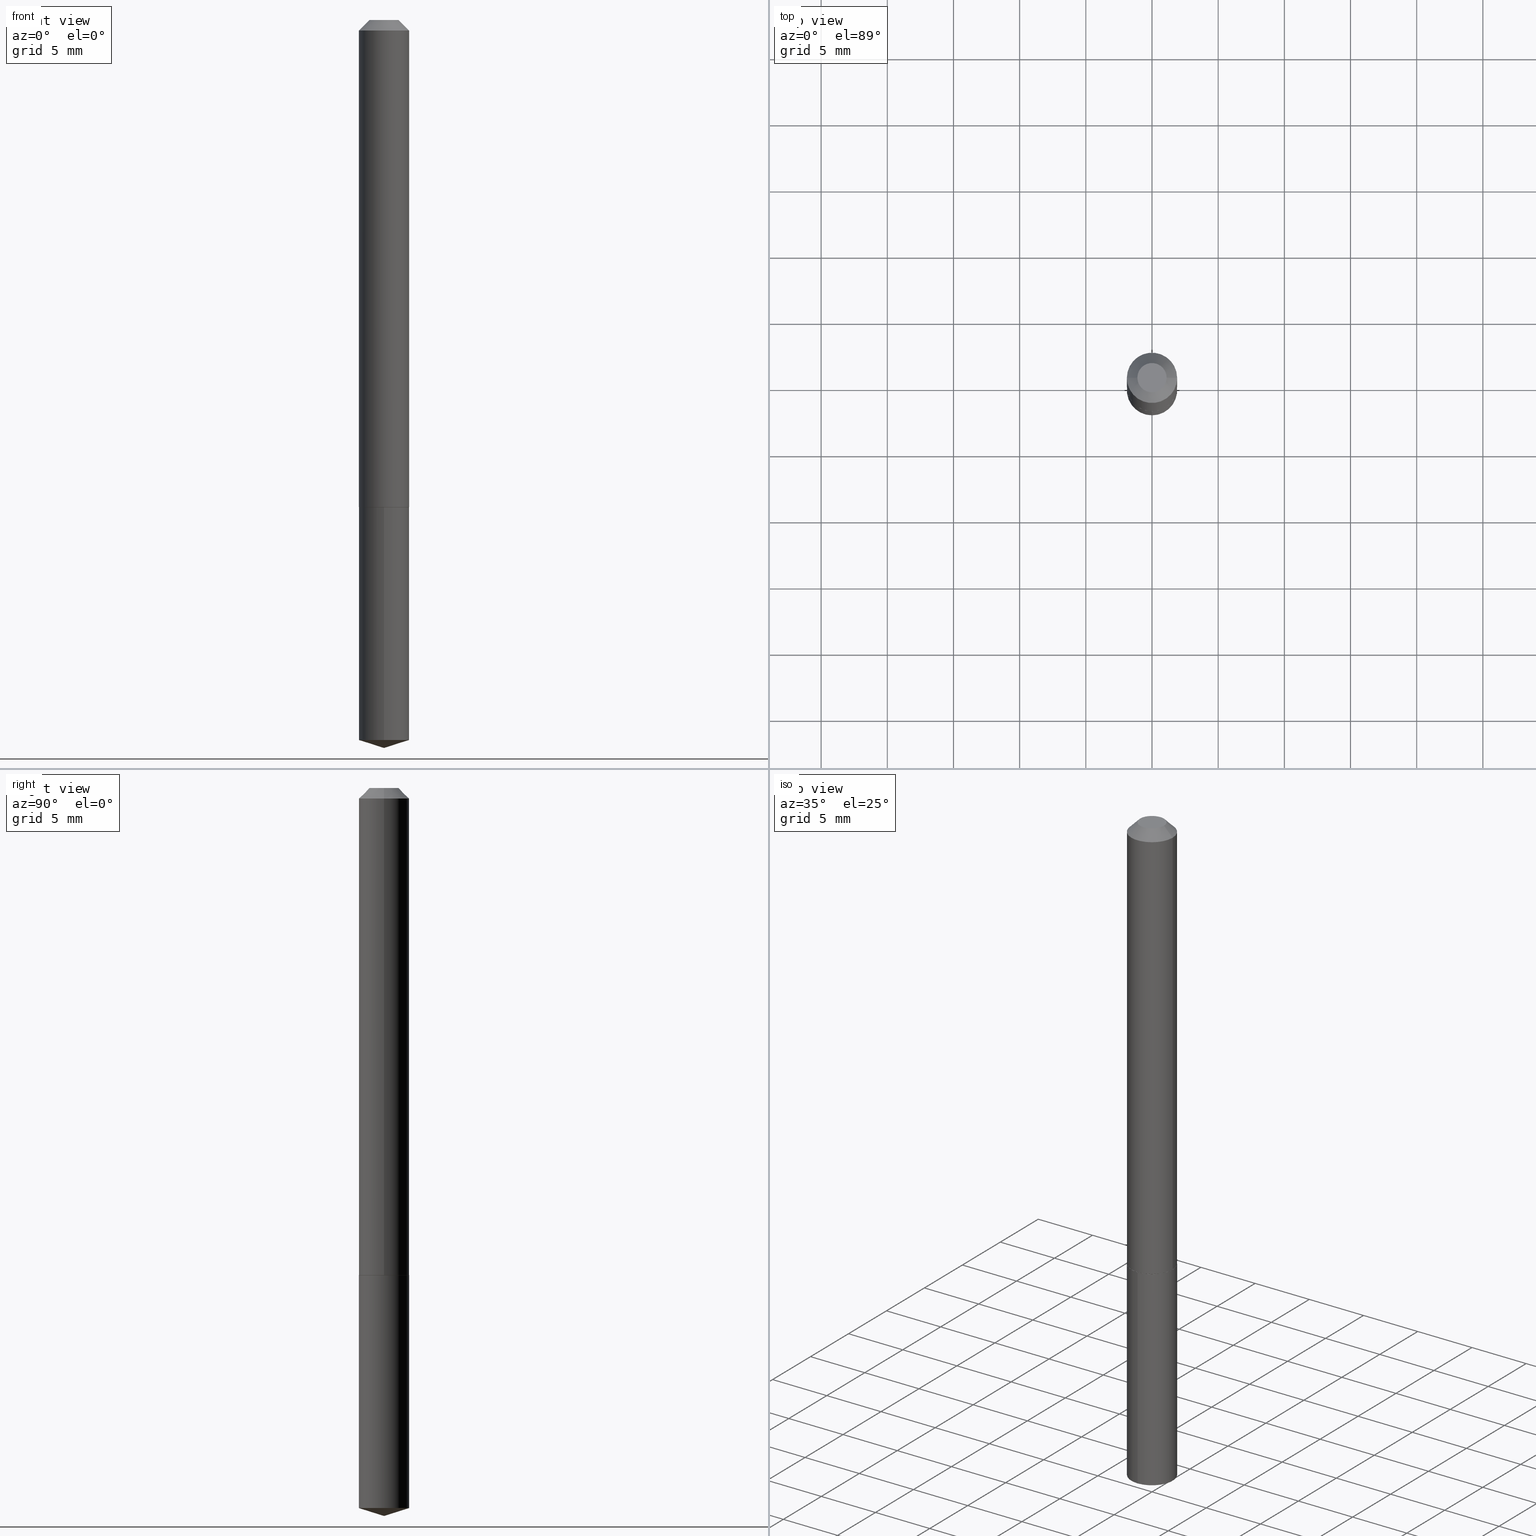
[diagram: canonical four-view strip — front | top / right | iso, engineering-drawing reading convention]
A machine part, canonical four-view strip (front | top / right | iso — engineering-drawing reading convention). The complete STEP part file that produces these views, byte-faithful:
ISO-10303-21;
HEADER;
FILE_DESCRIPTION (( 'STEP AP203' ),
    '1' );
FILE_NAME ('62087.STEP',
    '2024-04-23T05:45:46',
    ( '' ),
    ( '' ),
    'SwSTEP 2.0',
    'SolidWorks 2023',
    '' );
FILE_SCHEMA (( 'CONFIG_CONTROL_DESIGN' ));
ENDSEC;

DATA;
#1 = DIRECTION ( 'NONE',  ( 6.776566513254254982E-15, 0.9537169507482283759, 0.3007057995042684562 ) ) ;
#2 = DIRECTION ( 'NONE',  ( -2.445468806185136597E-29, 3.491481338843145583E-15, 1.000000000000000000 ) ) ;
#3 = VECTOR ( 'NONE', #81, 39.37007874015748143 ) ;
#4 = ORIENTED_EDGE ( 'NONE', *, *, #357, .T. ) ;
#5 = DATE_AND_TIME ( #182, #242 ) ;
#6 = ORIENTED_EDGE ( 'NONE', *, *, #159, .T. ) ;
#7 = EDGE_CURVE ( 'NONE', #8, #44, #180, .T. ) ;
#8 = VERTEX_POINT ( 'NONE', #46 ) ;
#9 = EDGE_LOOP ( 'NONE', ( #188, #73, #6, #324 ) ) ;
#10 = CLOSED_SHELL ( 'NONE', ( #267, #52, #375, #239, #28 ) ) ;
#11 = LOCAL_TIME ( 1, 45, 46.00000000000000000, #130 ) ;
#12 = DIRECTION ( 'NONE',  ( -2.445509094605350036E-29, 3.491423643532325446E-15, 1.000000000000000000 ) ) ;
#13 = DATE_AND_TIME ( #35, #176 ) ;
#14 = DIRECTION ( 'NONE',  ( -2.445509094605350036E-29, 3.491423643532325446E-15, 1.000000000000000000 ) ) ;
#15 = CYLINDRICAL_SURFACE ( 'NONE', #373, 0.07480000000000010252 ) ;
#16 = EDGE_CURVE ( 'NONE', #87, #355, #161, .T. ) ;
#17 = VECTOR ( 'NONE', #243, 39.37007874015748143 ) ;
#18 = DIRECTION ( 'NONE',  ( -6.659769872151628144E-15, -0.9537169507482261555, 0.3007057995042750620 ) ) ;
#19 = CARTESIAN_POINT ( 'NONE',  ( 0.07480000000000000537, -6.222740420721597243E-16, -0.03125000000000020123 ) ) ;
#20 = PERSON ( 'UNSPECIFIED', 'UNSPECIFIED', 'UNSPECIFIED', ('UNSPECIFIED'), ('UNSPECIFIED'), ('UNSPECIFIED') ) ;
#21 = DIRECTION ( 'NONE',  ( 1.000000000000000000, -6.982962677686271444E-15, 0.000000000000000000 ) ) ;
#22 = CONICAL_SURFACE ( 'NONE', #258, 124.8659371009144792, 1.265363707695890350 ) ;
#23 = CC_DESIGN_DATE_AND_TIME_ASSIGNMENT ( #13, #123, ( #91 ) ) ;
#24 = LINE ( 'NONE', #53, #3 ) ;
#25 = CARTESIAN_POINT ( 'NONE',  ( 3.543239753281644463E-29, -5.058807311849834990E-15, -1.448900000000000299 ) ) ;
#26 = DIRECTION ( 'NONE',  ( -2.445509094605349756E-29, 3.491423643532325446E-15, 1.000000000000000000 ) ) ;
#27 = VERTEX_POINT ( 'NONE', #338 ) ;
#28 = ADVANCED_FACE ( 'NONE', ( #290 ), #157, .F. ) ;
#29 = AXIS2_PLACEMENT_3D ( 'NONE', #40, #12, #192 ) ;
#30 = FACE_OUTER_BOUND ( 'NONE', #272, .T. ) ;
#31 = ORIENTED_EDGE ( 'NONE', *, *, #56, .T. ) ;
#32 = CARTESIAN_POINT ( 'NONE',  ( 5.295506417198682651E-29, -7.560328757704898095E-15, -2.165399999999999991 ) ) ;
#33 = ORIENTED_EDGE ( 'NONE', *, *, #357, .F. ) ;
#34 = CARTESIAN_POINT ( 'NONE',  ( 3.543239753281644463E-29, -5.058807311849834990E-15, -1.448900000000000299 ) ) ;
#35 = CALENDAR_DATE ( 2024, 23, 4 ) ;
#36 = EDGE_CURVE ( 'NONE', #174, #208, #230, .T. ) ;
#37 = AXIS2_PLACEMENT_3D ( 'NONE', #247, #14, #72 ) ;
#38 = ORIENTED_EDGE ( 'NONE', *, *, #75, .T. ) ;
#39 = APPROVAL_ROLE ( '' ) ;
#40 = CARTESIAN_POINT ( 'NONE',  ( -9.098443859481748747E-28, 1.298972114086744385E-13, 37.20467874015748322 ) ) ;
#41 = MANIFOLD_SOLID_BREP ( 'Body-Move/Copy2[1]', #10 ) ;
#42 = DIRECTION ( 'NONE',  ( -0.7071067811865453523, 2.468850131082234184E-15, -0.7071067811865496822 ) ) ;
#43 = APPROVAL ( #256, 'UNSPECIFIED' ) ;
#44 = VERTEX_POINT ( 'NONE', #93 ) ;
#45 = APPROVAL_DATE_TIME ( #66, #43 ) ;
#46 = CARTESIAN_POINT ( 'NONE',  ( 0.07430000000000049065, -5.577641438801927150E-15, -1.448900000000000299 ) ) ;
#47 = ORIENTED_EDGE ( 'NONE', *, *, #7, .F. ) ;
#48 = CARTESIAN_POINT ( 'NONE',  ( -5.223256082908973017E-16, -0.07480000000000507077, -1.448899999999999855 ) ) ;
#49 = CONICAL_SURFACE ( 'NONE', #250, 0.07480000000000000537, 0.7853981633974452814 ) ;
#50 = CARTESIAN_POINT ( 'NONE',  ( 5.314859663486073379E-16, 0.07479999999999492610, -1.448900000000000521 ) ) ;
#51 = LINE ( 'NONE', #295, #277 ) ;
#52 = ADVANCED_FACE ( 'NONE', ( #129 ), #141, .T. ) ;
#53 = CARTESIAN_POINT ( 'NONE',  ( 0.07480000000000018578, -5.579387179471347865E-15, -1.448400000000000354 ) ) ;
#54 = FACE_OUTER_BOUND ( 'NONE', #74, .T. ) ;
#55 = FACE_OUTER_BOUND ( 'NONE', #9, .T. ) ;
#56 = EDGE_CURVE ( 'NONE', #149, #87, #264, .T. ) ;
#57 = DIRECTION ( 'NONE',  ( 1.000000000000000000, -6.982962677686271444E-15, 0.000000000000000000 ) ) ;
#58 = VECTOR ( 'NONE', #261, 39.37007874015748143 ) ;
#59 = CC_DESIGN_SECURITY_CLASSIFICATION ( #347, ( #79 ) ) ;
#60 =( NAMED_UNIT ( * ) SI_UNIT ( $, .STERADIAN. ) SOLID_ANGLE_UNIT ( ) );
#61 = ORIENTED_EDGE ( 'NONE', *, *, #226, .T. ) ;
#62 = ADVANCED_FACE ( 'NONE', ( #100 ), #49, .T. ) ;
#63 = DIRECTION ( 'NONE',  ( 1.000000000000000000, -6.982962677686265922E-15, 4.876176775795935793E-29 ) ) ;
#64 = ORIENTED_EDGE ( 'NONE', *, *, #125, .F. ) ;
#65 = UNCERTAINTY_MEASURE_WITH_UNIT (LENGTH_MEASURE( 1.000000000000000082E-05 ), #389, 'distance_accuracy_value', 'NONE');
#66 = DATE_AND_TIME ( #248, #136 ) ;
#67 = AXIS2_PLACEMENT_3D ( 'NONE', #168, #171, #198 ) ;
#68 = CC_DESIGN_APPROVAL ( #43, ( #91 ) ) ;
#69 = ORIENTED_EDGE ( 'NONE', *, *, #206, .T. ) ;
#70 = ORIENTED_EDGE ( 'NONE', *, *, #125, .T. ) ;
#71 = EDGE_CURVE ( 'NONE', #208, #174, #135, .T. ) ;
#72 = DIRECTION ( 'NONE',  ( -6.982962677686266711E-15, -1.000000000000000000, 3.652203200085913145E-15 ) ) ;
#73 = ORIENTED_EDGE ( 'NONE', *, *, #291, .T. ) ;
#74 = EDGE_LOOP ( 'NONE', ( #304, #220, #211, #179 ) ) ;
#75 = EDGE_CURVE ( 'NONE', #187, #289, #345, .T. ) ;
#76 = FACE_OUTER_BOUND ( 'NONE', #390, .T. ) ;
#77 = DIRECTION ( 'NONE',  ( -2.445509094605350036E-29, 3.491423643532325446E-15, 1.000000000000000000 ) ) ;
#78 = AXIS2_PLACEMENT_3D ( 'NONE', #139, #77, #142 ) ;
#79 = PRODUCT_DEFINITION_FORMATION_WITH_SPECIFIED_SOURCE ( 'ANY', '', #189, .NOT_KNOWN. ) ;
#80 = CARTESIAN_POINT ( 'NONE',  ( 0.07480000000000018578, -5.579387179471347865E-15, -1.448400000000000354 ) ) ;
#81 = DIRECTION ( 'NONE',  ( 0.7071067811864026886, -2.468850131080739687E-15, 0.7071067811866923458 ) ) ;
#82 = PLANE ( 'NONE',  #67 ) ;
#83 = AXIS2_PLACEMENT_3D ( 'NONE', #271, #210, #323 ) ;
#84 = ADVANCED_FACE ( 'NONE', ( #349 ), #293, .T. ) ;
#85 = ORIENTED_EDGE ( 'NONE', *, *, #16, .T. ) ;
#86 = CARTESIAN_POINT ( 'NONE',  ( 7.642090019328601786E-31, -1.091087918388490144E-16, -0.03125000000000020123 ) ) ;
#87 = VERTEX_POINT ( 'NONE', #105 ) ;
#88 = DIRECTION ( 'NONE',  ( -6.982962677686268288E-15, -1.000000000000000000, 3.500519750498720998E-15 ) ) ;
#89 = AXIS2_PLACEMENT_3D ( 'NONE', #133, #255, #370 ) ;
#90 = CYLINDRICAL_SURFACE ( 'NONE', #257, 0.07480000000000000537 ) ;
#91 = PRODUCT_DEFINITION ( 'UNKNOWN', '', #79, #262 ) ;
#92 = CARTESIAN_POINT ( 'NONE',  ( 5.314859663485903773E-16, 0.07479999999999495386, -1.448900000000000521 ) ) ;
#93 = CARTESIAN_POINT ( 'NONE',  ( -0.07430000000000049065, -4.528224832005967541E-15, -1.448900000000000299 ) ) ;
#94 = EDGE_CURVE ( 'NONE', #174, #27, #111, .T. ) ;
#95 = COORDINATED_UNIVERSAL_TIME_OFFSET ( 5, 0, .BEHIND. ) ;
#96 = EDGE_LOOP ( 'NONE', ( #4, #31 ) ) ;
#97 = PERSON_AND_ORGANIZATION ( #20, #321 ) ;
#98 = ORIENTED_EDGE ( 'NONE', *, *, #159, .F. ) ;
#99 = PERSON_AND_ORGANIZATION ( #20, #321 ) ;
#100 = FACE_OUTER_BOUND ( 'NONE', #387, .T. ) ;
#101 = CARTESIAN_POINT ( 'NONE',  ( 0.000000000000000000, 0.000000000000000000, 0.000000000000000000 ) ) ;
#102 = ORIENTED_EDGE ( 'NONE', *, *, #291, .F. ) ;
#103 = CIRCLE ( 'NONE', #299, 0.07480000000000000537 ) ;
#104 = APPROVAL_PERSON_ORGANIZATION ( #363, #43, #214 ) ;
#105 = CARTESIAN_POINT ( 'NONE',  ( -0.04355000000000000537, 3.586624205326603821E-16, 2.388061258314175796E-19 ) ) ;
#106 = DIRECTION ( 'NONE',  ( 2.445468806185136597E-29, -3.491481338843145583E-15, -1.000000000000000000 ) ) ;
#107 = EDGE_CURVE ( 'NONE', #27, #122, #190, .T. ) ;
#108 = DIRECTION ( 'NONE',  ( -6.982962677686266711E-15, -1.000000000000000000, 3.652203200085913145E-15 ) ) ;
#109 = CIRCLE ( 'NONE', #269, 0.07430000000000049065 ) ;
#110 = CARTESIAN_POINT ( 'NONE',  ( 3.542017018878552782E-29, -5.057061571180413486E-15, -1.448400000000000354 ) ) ;
#111 = LINE ( 'NONE', #48, #58 ) ;
#112 = LINE ( 'NONE', #92, #346 ) ;
#113 = CIRCLE ( 'NONE', #308, 0.07480000000000018578 ) ;
#114 = LINE ( 'NONE', #32, #315 ) ;
#115 = ORIENTED_EDGE ( 'NONE', *, *, #301, .T. ) ;
#116 =( NAMED_UNIT ( * ) PLANE_ANGLE_UNIT ( ) SI_UNIT ( $, .RADIAN. ) );
#117 = CARTESIAN_POINT ( 'NONE',  ( -0.07480000000000000537, -2.051599215161074541E-15, -0.03125000000000020123 ) ) ;
#118 = EDGE_CURVE ( 'NONE', #332, #187, #113, .T. ) ;
#119 = ORIENTED_EDGE ( 'NONE', *, *, #107, .T. ) ;
#120 = VECTOR ( 'NONE', #42, 39.37007874015748143 ) ;
#121 = DIRECTION ( 'NONE',  ( 1.000000000000000000, -6.982962677686265922E-15, 4.876178871365119534E-29 ) ) ;
#122 = VERTEX_POINT ( 'NONE', #50 ) ;
#123 = DATE_TIME_ROLE ( 'creation_date' ) ;
#124 = DIRECTION ( 'NONE',  ( 2.445509094605349756E-29, -3.491423643532325446E-15, -1.000000000000000000 ) ) ;
#125 = EDGE_CURVE ( 'NONE', #149, #289, #166, .T. ) ;
#126 = CARTESIAN_POINT ( 'NONE',  ( 3.543239753281644463E-29, -5.058807311849834990E-15, -1.448900000000000299 ) ) ;
#127 = AXIS2_PLACEMENT_3D ( 'NONE', #300, #148, #297 ) ;
#128 = PERSON_AND_ORGANIZATION ( #20, #321 ) ;
#129 = FACE_OUTER_BOUND ( 'NONE', #158, .T. ) ;
#130 = COORDINATED_UNIVERSAL_TIME_OFFSET ( 5, 0, .BEHIND. ) ;
#131 = VERTEX_POINT ( 'NONE', #377 ) ;
#132 = APPROVAL_ROLE ( '' ) ;
#133 = CARTESIAN_POINT ( 'NONE',  ( -5.839929314523209442E-48, 8.337871319499132076E-34, 2.388061258337348103E-19 ) ) ;
#134 = CARTESIAN_POINT ( 'NONE',  ( 3.543239753281644463E-29, -5.058807311849834990E-15, -1.448900000000000299 ) ) ;
#135 = CIRCLE ( 'NONE', #333, 0.07480000000000000537 ) ;
#136 = LOCAL_TIME ( 1, 45, 46.00000000000000000, #331 ) ;
#137 = DIRECTION ( 'NONE',  ( 1.000000000000000000, -6.982962677686266711E-15, 0.000000000000000000 ) ) ;
#138 = APPROVAL ( #334, 'UNSPECIFIED' ) ;
#139 = CARTESIAN_POINT ( 'NONE',  ( 3.543239753281644463E-29, -5.058807311849834990E-15, -1.448900000000000299 ) ) ;
#140 = DIRECTION ( 'NONE',  ( 2.445468806185136597E-29, -3.491481338843145583E-15, -1.000000000000000000 ) ) ;
#141 = CONICAL_SURFACE ( 'NONE', #29, 124.8659371009144792, 1.265363707695890350 ) ;
#142 = DIRECTION ( 'NONE',  ( -6.982962677686265922E-15, -1.000000000000000000, 3.652203200085913145E-15 ) ) ;
#143 =( LENGTH_UNIT ( ) NAMED_UNIT ( * ) SI_UNIT ( $, .METRE. ) );
#144 = CARTESIAN_POINT ( 'NONE',  ( -0.07480000000000018578, -4.525575604831857918E-15, -1.448400000000000354 ) ) ;
#145 = CIRCLE ( 'NONE', #366, 0.07480000000000000537 ) ;
#146 =( GEOMETRIC_REPRESENTATION_CONTEXT ( 3 ) GLOBAL_UNCERTAINTY_ASSIGNED_CONTEXT ( ( #65 ) ) GLOBAL_UNIT_ASSIGNED_CONTEXT ( ( #389, #116, #60 ) ) REPRESENTATION_CONTEXT ( 'NONE', 'WORKASPACE' ) );
#147 = ORIENTED_EDGE ( 'NONE', *, *, #16, .F. ) ;
#148 = DIRECTION ( 'NONE',  ( -2.445468806185136597E-29, 3.491481338843145583E-15, 1.000000000000000000 ) ) ;
#149 = VERTEX_POINT ( 'NONE', #380 ) ;
#150 = DIRECTION ( 'NONE',  ( -2.445468806185136597E-29, 3.491481338843145583E-15, 1.000000000000000000 ) ) ;
#151 = CIRCLE ( 'NONE', #127, 0.07480000000000018578 ) ;
#152 = SECURITY_CLASSIFICATION_LEVEL ( 'unclassified' ) ;
#153 = ORIENTED_EDGE ( 'NONE', *, *, #107, .F. ) ;
#154 = PERSON_AND_ORGANIZATION_ROLE ( 'design_supplier' ) ;
#155 = ORIENTED_EDGE ( 'NONE', *, *, #175, .T. ) ;
#156 = PERSON_AND_ORGANIZATION_ROLE ( 'creator' ) ;
#157 = PLANE ( 'NONE',  #365 ) ;
#158 = EDGE_LOOP ( 'NONE', ( #354, #115, #335 ) ) ;
#159 = EDGE_CURVE ( 'NONE', #8, #187, #24, .T. ) ;
#160 = APPROVAL_STATUS ( 'not_yet_approved' ) ;
#161 = LINE ( 'NONE', #218, #120 ) ;
#162 = ORIENTED_EDGE ( 'NONE', *, *, #71, .F. ) ;
#163 = ADVANCED_BREP_SHAPE_REPRESENTATION ( '62087', ( #41, #311, #169 ), #146 ) ;
#164 = FACE_OUTER_BOUND ( 'NONE', #96, .T. ) ;
#165 = AXIS2_PLACEMENT_3D ( 'NONE', #319, #374, #294 ) ;
#166 = LINE ( 'NONE', #19, #238 ) ;
#167 = DIRECTION ( 'NONE',  ( -2.445509094605350036E-29, 3.491423643532325446E-15, 1.000000000000000000 ) ) ;
#168 = CARTESIAN_POINT ( 'NONE',  ( -2.919964657261604721E-48, 4.168935659749566038E-34, 1.194030629168674052E-19 ) ) ;
#169 = AXIS2_PLACEMENT_3D ( 'NONE', #101, #369, #222 ) ;
#170 = ADVANCED_FACE ( 'NONE', ( #381 ), #352, .T. ) ;
#171 = DIRECTION ( 'NONE',  ( 2.438088387897960049E-29, -3.491481338843145188E-15, -1.000000000000000000 ) ) ;
#172 = DIRECTION ( 'NONE',  ( -2.445468806185136597E-29, 3.491481338843145583E-15, 1.000000000000000000 ) ) ;
#173 = CARTESIAN_POINT ( 'NONE',  ( -9.098443859481748747E-28, 1.298972114086744385E-13, 37.20467874015748322 ) ) ;
#174 = VERTEX_POINT ( 'NONE', #343 ) ;
#175 = EDGE_CURVE ( 'NONE', #289, #355, #103, .T. ) ;
#176 = LOCAL_TIME ( 1, 45, 46.00000000000000000, #178 ) ;
#177 = CARTESIAN_POINT ( 'NONE',  ( 3.543239753281644463E-29, -5.058807311849834990E-15, -1.448900000000000299 ) ) ;
#178 = COORDINATED_UNIVERSAL_TIME_OFFSET ( 5, 0, .BEHIND. ) ;
#179 = ORIENTED_EDGE ( 'NONE', *, *, #206, .F. ) ;
#180 = CIRCLE ( 'NONE', #378, 0.07430000000000049065 ) ;
#181 = AXIS2_PLACEMENT_3D ( 'NONE', #353, #172, #57 ) ;
#182 = CALENDAR_DATE ( 2024, 23, 4 ) ;
#183 = ADVANCED_FACE ( 'NONE', ( #76 ), #285, .T. ) ;
#184 = EDGE_LOOP ( 'NONE', ( #249, #225, #153, #307 ) ) ;
#185 = APPLICATION_CONTEXT ( 'configuration controlled 3d designs of mechanical parts and assemblies' ) ;
#186 = PERSON_AND_ORGANIZATION ( #20, #321 ) ;
#187 = VERTEX_POINT ( 'NONE', #80 ) ;
#188 = ORIENTED_EDGE ( 'NONE', *, *, #382, .F. ) ;
#189 = PRODUCT ( '62087', '62087', '', ( #278 ) ) ;
#190 = CIRCLE ( 'NONE', #78, 0.07480000000000000537 ) ;
#191 = CONICAL_SURFACE ( 'NONE', #181, 0.07480000000000018578, 0.7853981633972434429 ) ;
#192 = DIRECTION ( 'NONE',  ( -6.982962677686268288E-15, -1.000000000000000000, 3.500519750498720998E-15 ) ) ;
#193 = DIRECTION ( 'NONE',  ( -2.445468806185136597E-29, 3.491481338843145583E-15, 1.000000000000000000 ) ) ;
#194 = ADVANCED_FACE ( 'NONE', ( #164 ), #82, .F. ) ;
#195 = DIRECTION ( 'NONE',  ( -2.445468806185136877E-29, 3.491481338843145188E-15, 1.000000000000000000 ) ) ;
#196 = CARTESIAN_POINT ( 'NONE',  ( 3.542017018878552782E-29, -5.057061571180413486E-15, -1.448400000000000354 ) ) ;
#197 = VECTOR ( 'NONE', #296, 39.37007874015748143 ) ;
#198 = DIRECTION ( 'NONE',  ( -1.000000000000000000, 6.982962677686265922E-15, -4.876176775795935793E-29 ) ) ;
#199 = CARTESIAN_POINT ( 'NONE',  ( 0.07480000000000010252, -5.223256082909333921E-16, 3.647380228295364368E-30 ) ) ;
#200 = CC_DESIGN_DATE_AND_TIME_ASSIGNMENT ( #367, #254, ( #347 ) ) ;
#201 = FACE_OUTER_BOUND ( 'NONE', #244, .T. ) ;
#202 = AXIS2_PLACEMENT_3D ( 'NONE', #110, #234, #314 ) ;
#203 = CYLINDRICAL_SURFACE ( 'NONE', #83, 0.07480000000000000537 ) ;
#204 = ORIENTED_EDGE ( 'NONE', *, *, #7, .T. ) ;
#205 = DIRECTION ( 'NONE',  ( -2.445509094605350036E-29, 3.491423643532325446E-15, 1.000000000000000000 ) ) ;
#206 = EDGE_CURVE ( 'NONE', #122, #27, #216, .T. ) ;
#207 = ORIENTED_EDGE ( 'NONE', *, *, #312, .F. ) ;
#208 = VERTEX_POINT ( 'NONE', #318 ) ;
#209 = AXIS2_PLACEMENT_3D ( 'NONE', #134, #236, #350 ) ;
#210 = DIRECTION ( 'NONE',  ( -2.445509094605350036E-29, 3.491423643532325446E-15, 1.000000000000000000 ) ) ;
#211 = ORIENTED_EDGE ( 'NONE', *, *, #94, .T. ) ;
#212 = LINE ( 'NONE', #326, #197 ) ;
#213 = CC_DESIGN_PERSON_AND_ORGANIZATION_ASSIGNMENT ( #99, #283, ( #189 ) ) ;
#214 = APPROVAL_ROLE ( '' ) ;
#215 = ORIENTED_EDGE ( 'NONE', *, *, #56, .F. ) ;
#216 = CIRCLE ( 'NONE', #209, 0.07480000000000000537 ) ;
#217 = CALENDAR_DATE ( 2024, 23, 4 ) ;
#218 = CARTESIAN_POINT ( 'NONE',  ( -0.07480000000000000537, 4.132168164520837984E-16, -0.03125000000000020123 ) ) ;
#219 = DATE_AND_TIME ( #371, #11 ) ;
#220 = ORIENTED_EDGE ( 'NONE', *, *, #71, .T. ) ;
#221 = PRODUCT_RELATED_PRODUCT_CATEGORY ( 'detail', '', ( #189 ) ) ;
#222 = DIRECTION ( 'NONE',  ( 1.000000000000000000, 0.000000000000000000, 0.000000000000000000 ) ) ;
#223 = CARTESIAN_POINT ( 'NONE',  ( 7.642090019328601786E-31, -1.091087918388490144E-16, -0.03125000000000020123 ) ) ;
#224 = APPLICATION_PROTOCOL_DEFINITION ( 'international standard', 'config_control_design', 1994, #229 ) ;
#225 = ORIENTED_EDGE ( 'NONE', *, *, #263, .T. ) ;
#226 = EDGE_CURVE ( 'NONE', #131, #174, #51, .T. ) ;
#227 = DIRECTION ( 'NONE',  ( -2.445468806185136597E-29, 3.491481338843145583E-15, 1.000000000000000000 ) ) ;
#228 = DIRECTION ( 'NONE',  ( -1.000000000000000000, 6.982962677686266711E-15, 0.000000000000000000 ) ) ;
#229 = APPLICATION_CONTEXT ( 'configuration controlled 3d designs of mechanical parts and assemblies' ) ;
#230 = CIRCLE ( 'NONE', #37, 0.07480000000000000537 ) ;
#231 = CARTESIAN_POINT ( 'NONE',  ( 7.642090019328601786E-31, -1.091087918388490144E-16, -0.03125000000000020123 ) ) ;
#232 = CC_DESIGN_APPROVAL ( #138, ( #347 ) ) ;
#233 = DIMENSIONAL_EXPONENTS ( 1.000000000000000000, 0.000000000000000000, 0.000000000000000000, 0.000000000000000000, 0.000000000000000000, 0.000000000000000000, 0.000000000000000000 ) ;
#234 = DIRECTION ( 'NONE',  ( -2.445468806185136597E-29, 3.491481338843145583E-15, 1.000000000000000000 ) ) ;
#235 = ADVANCED_FACE ( 'NONE', ( #201 ), #15, .T. ) ;
#236 = DIRECTION ( 'NONE',  ( -2.445509094605350036E-29, 3.491423643532325446E-15, 1.000000000000000000 ) ) ;
#237 = DIRECTION ( 'NONE',  ( -2.445468806185136597E-29, 3.491481338843145583E-15, 1.000000000000000000 ) ) ;
#238 = VECTOR ( 'NONE', #259, 39.37007874015748143 ) ;
#239 = ADVANCED_FACE ( 'NONE', ( #54 ), #90, .T. ) ;
#240 = ORIENTED_EDGE ( 'NONE', *, *, #75, .F. ) ;
#241 = CARTESIAN_POINT ( 'NONE',  ( -0.07480000000000018578, -4.525575604831857918E-15, -1.448400000000000354 ) ) ;
#242 = LOCAL_TIME ( 1, 45, 46.00000000000000000, #305 ) ;
#243 = DIRECTION ( 'NONE',  ( -0.7071067811864026886, 7.493145998869830357E-15, 0.7071067811866923458 ) ) ;
#244 = EDGE_LOOP ( 'NONE', ( #313, #368, #306, #240 ) ) ;
#245 = EDGE_CURVE ( 'NONE', #187, #332, #151, .T. ) ;
#246 = APPROVAL_DATE_TIME ( #219, #138 ) ;
#247 = CARTESIAN_POINT ( 'NONE',  ( 5.237771278598401273E-29, -7.478069397299810135E-15, -2.141815650591852194 ) ) ;
#248 = CALENDAR_DATE ( 2024, 23, 4 ) ;
#249 = ORIENTED_EDGE ( 'NONE', *, *, #36, .T. ) ;
#250 = AXIS2_PLACEMENT_3D ( 'NONE', #223, #106, #228 ) ;
#251 = CIRCLE ( 'NONE', #379, 0.04355000000000000537 ) ;
#252 = PERSON_AND_ORGANIZATION_ROLE ( 'classification_officer' ) ;
#253 = ORIENTED_EDGE ( 'NONE', *, *, #118, .T. ) ;
#254 = DATE_TIME_ROLE ( 'classification_date' ) ;
#255 = DIRECTION ( 'NONE',  ( -2.445468806185136597E-29, 3.491481338843145583E-15, 1.000000000000000000 ) ) ;
#256 = APPROVAL_STATUS ( 'not_yet_approved' ) ;
#257 = AXIS2_PLACEMENT_3D ( 'NONE', #177, #205, #383 ) ;
#258 = AXIS2_PLACEMENT_3D ( 'NONE', #173, #298, #88 ) ;
#259 = DIRECTION ( 'NONE',  ( 0.7071067811865453523, -7.319954787623248157E-15, -0.7071067811865496822 ) ) ;
#260 = CARTESIAN_POINT ( 'NONE',  ( 0.000000000000000000, 0.000000000000000000, 0.000000000000000000 ) ) ;
#261 = DIRECTION ( 'NONE',  ( -2.445509094605349756E-29, 3.491423643532325446E-15, 1.000000000000000000 ) ) ;
#262 = DESIGN_CONTEXT ( 'detailed design', #229, 'design' ) ;
#263 = EDGE_CURVE ( 'NONE', #208, #122, #112, .T. ) ;
#264 = CIRCLE ( 'NONE', #89, 0.04355000000000000537 ) ;
#265 = DIRECTION ( 'NONE',  ( -1.000000000000000000, 6.982962677686266711E-15, 0.000000000000000000 ) ) ;
#266 = CARTESIAN_POINT ( 'NONE',  ( 5.237771278598401273E-29, -7.478069397299810135E-15, -2.141815650591852194 ) ) ;
#267 = ADVANCED_FACE ( 'NONE', ( #273 ), #203, .T. ) ;
#268 = PLANE ( 'NONE',  #316 ) ;
#269 = AXIS2_PLACEMENT_3D ( 'NONE', #34, #150, #328 ) ;
#270 = LOCAL_TIME ( 1, 45, 46.00000000000000000, #95 ) ;
#271 = CARTESIAN_POINT ( 'NONE',  ( 3.543239753281644463E-29, -5.058807311849834990E-15, -1.448900000000000299 ) ) ;
#272 = EDGE_LOOP ( 'NONE', ( #47, #102 ) ) ;
#273 = FACE_OUTER_BOUND ( 'NONE', #184, .T. ) ;
#274 = EDGE_LOOP ( 'NONE', ( #360, #61, #162 ) ) ;
#275 = CARTESIAN_POINT ( 'NONE',  ( 0.07480000000000000537, -6.314344001297818025E-16, -0.03125000000000020123 ) ) ;
#276 = CC_DESIGN_PERSON_AND_ORGANIZATION_ASSIGNMENT ( #280, #252, ( #347 ) ) ;
#277 = VECTOR ( 'NONE', #18, 39.37007874015748854 ) ;
#278 = MECHANICAL_CONTEXT ( 'NONE', #185, 'mechanical' ) ;
#279 = EDGE_LOOP ( 'NONE', ( #119, #69 ) ) ;
#280 = PERSON_AND_ORGANIZATION ( #20, #321 ) ;
#281 = EDGE_LOOP ( 'NONE', ( #364, #253, #38, #207 ) ) ;
#282 = CC_DESIGN_PERSON_AND_ORGANIZATION_ASSIGNMENT ( #309, #156, ( #79 ) ) ;
#283 = PERSON_AND_ORGANIZATION_ROLE ( 'design_owner' ) ;
#284 = CARTESIAN_POINT ( 'NONE',  ( 3.543239753281644463E-29, -5.058807311849834990E-15, -1.448900000000000299 ) ) ;
#285 = CONICAL_SURFACE ( 'NONE', #202, 0.07480000000000018578, 0.7853981633972434429 ) ;
#286 = APPLICATION_PROTOCOL_DEFINITION ( 'international standard', 'config_control_design', 1994, #185 ) ;
#287 = DIRECTION ( 'NONE',  ( 6.982962677686265922E-15, 1.000000000000000000, -3.491423643532325446E-15 ) ) ;
#288 = PERSON_AND_ORGANIZATION_ROLE ( 'creator' ) ;
#289 = VERTEX_POINT ( 'NONE', #275 ) ;
#290 = FACE_OUTER_BOUND ( 'NONE', #279, .T. ) ;
#291 = EDGE_CURVE ( 'NONE', #44, #8, #109, .T. ) ;
#292 = VECTOR ( 'NONE', #195, 39.37007874015748143 ) ;
#293 = CYLINDRICAL_SURFACE ( 'NONE', #165, 0.07480000000000010252 ) ;
#294 = DIRECTION ( 'NONE',  ( 1.000000000000000000, -6.982962677686265922E-15, 4.876176775795935232E-29 ) ) ;
#295 = CARTESIAN_POINT ( 'NONE',  ( 5.295388645674330270E-29, -7.560495947176593089E-15, -2.165399999999999991 ) ) ;
#296 = DIRECTION ( 'NONE',  ( -2.445468806185136877E-29, 3.491481338843145188E-15, 1.000000000000000000 ) ) ;
#297 = DIRECTION ( 'NONE',  ( 1.000000000000000000, -6.982962677686271444E-15, 0.000000000000000000 ) ) ;
#298 = DIRECTION ( 'NONE',  ( -2.445509094605350036E-29, 3.491423643532325446E-15, 1.000000000000000000 ) ) ;
#299 = AXIS2_PLACEMENT_3D ( 'NONE', #348, #227, #137 ) ;
#300 = CARTESIAN_POINT ( 'NONE',  ( 3.542017018878552782E-29, -5.057061571180413486E-15, -1.448400000000000354 ) ) ;
#301 = EDGE_CURVE ( 'NONE', #131, #208, #114, .T. ) ;
#302 = LINE ( 'NONE', #241, #17 ) ;
#303 = APPROVAL_DATE_TIME ( #5, #344 ) ;
#304 = ORIENTED_EDGE ( 'NONE', *, *, #263, .F. ) ;
#305 = COORDINATED_UNIVERSAL_TIME_OFFSET ( 5, 0, .BEHIND. ) ;
#306 = ORIENTED_EDGE ( 'NONE', *, *, #175, .F. ) ;
#307 = ORIENTED_EDGE ( 'NONE', *, *, #94, .F. ) ;
#308 = AXIS2_PLACEMENT_3D ( 'NONE', #196, #317, #21 ) ;
#309 = PERSON_AND_ORGANIZATION ( #20, #321 ) ;
#310 = EDGE_LOOP ( 'NONE', ( #64, #33, #85, #342 ) ) ;
#311 = MANIFOLD_SOLID_BREP ( 'Body-Move/Copy2[2]', #327 ) ;
#312 = EDGE_CURVE ( 'NONE', #355, #289, #145, .T. ) ;
#313 = ORIENTED_EDGE ( 'NONE', *, *, #245, .T. ) ;
#314 = DIRECTION ( 'NONE',  ( 1.000000000000000000, -6.982962677686271444E-15, 0.000000000000000000 ) ) ;
#315 = VECTOR ( 'NONE', #1, 39.37007874015748854 ) ;
#316 = AXIS2_PLACEMENT_3D ( 'NONE', #25, #358, #63 ) ;
#317 = DIRECTION ( 'NONE',  ( -2.445468806185136597E-29, 3.491481338843145583E-15, 1.000000000000000000 ) ) ;
#318 = CARTESIAN_POINT ( 'NONE',  ( 5.314859663486075351E-16, 0.07479999999999253912, -2.141815650591852638 ) ) ;
#319 = CARTESIAN_POINT ( 'NONE',  ( 0.000000000000000000, 0.000000000000000000, 0.000000000000000000 ) ) ;
#320 = DIRECTION ( 'NONE',  ( 1.000000000000000000, -6.982962677686265922E-15, 4.876176775795935232E-29 ) ) ;
#321 = ORGANIZATION ( 'UNSPECIFIED', 'UNSPECIFIED', '' ) ;
#322 = CC_DESIGN_PERSON_AND_ORGANIZATION_ASSIGNMENT ( #186, #288, ( #91 ) ) ;
#323 = DIRECTION ( 'NONE',  ( -6.982962677686266711E-15, -1.000000000000000000, 3.652203200085913145E-15 ) ) ;
#324 = ORIENTED_EDGE ( 'NONE', *, *, #118, .F. ) ;
#325 = DIRECTION ( 'NONE',  ( 1.000000000000000000, -6.982962677686266711E-15, 0.000000000000000000 ) ) ;
#326 = CARTESIAN_POINT ( 'NONE',  ( -0.07480000000000010252, 5.314859663485556675E-16, -3.679363447510674285E-30 ) ) ;
#327 = CLOSED_SHELL ( 'NONE', ( #62, #235, #183, #388, #351, #84, #170, #194 ) ) ;
#328 = DIRECTION ( 'NONE',  ( 1.000000000000000000, -6.982962677686261189E-15, 0.000000000000000000 ) ) ;
#329 = FACE_OUTER_BOUND ( 'NONE', #274, .T. ) ;
#330 = EDGE_CURVE ( 'NONE', #332, #355, #212, .T. ) ;
#331 = COORDINATED_UNIVERSAL_TIME_OFFSET ( 5, 0, .BEHIND. ) ;
#332 = VERTEX_POINT ( 'NONE', #144 ) ;
#333 = AXIS2_PLACEMENT_3D ( 'NONE', #266, #167, #108 ) ;
#334 = APPROVAL_STATUS ( 'not_yet_approved' ) ;
#335 = ORIENTED_EDGE ( 'NONE', *, *, #36, .F. ) ;
#336 = DIRECTION ( 'NONE',  ( 1.000000000000000000, -6.982962677686261189E-15, 0.000000000000000000 ) ) ;
#337 = PERSON_AND_ORGANIZATION ( #20, #321 ) ;
#338 = CARTESIAN_POINT ( 'NONE',  ( -5.223256082908973017E-16, -0.07480000000000507077, -1.448899999999999855 ) ) ;
#339 = CC_DESIGN_PERSON_AND_ORGANIZATION_ASSIGNMENT ( #128, #154, ( #79 ) ) ;
#340 = APPROVAL_PERSON_ORGANIZATION ( #337, #344, #39 ) ;
#341 = SHAPE_DEFINITION_REPRESENTATION ( #361, #163 ) ;
#342 = ORIENTED_EDGE ( 'NONE', *, *, #312, .T. ) ;
#343 = CARTESIAN_POINT ( 'NONE',  ( -5.223256082908805384E-16, -0.07480000000000751326, -2.141815650591851750 ) ) ;
#344 = APPROVAL ( #160, 'UNSPECIFIED' ) ;
#345 = LINE ( 'NONE', #199, #292 ) ;
#346 = VECTOR ( 'NONE', #26, 39.37007874015748143 ) ;
#347 = SECURITY_CLASSIFICATION ( '', '', #152 ) ;
#348 = CARTESIAN_POINT ( 'NONE',  ( 7.642090019328601786E-31, -1.091087918388490144E-16, -0.03125000000000020123 ) ) ;
#349 = FACE_OUTER_BOUND ( 'NONE', #281, .T. ) ;
#350 = DIRECTION ( 'NONE',  ( -6.982962677686265922E-15, -1.000000000000000000, 3.652203200085913145E-15 ) ) ;
#351 = ADVANCED_FACE ( 'NONE', ( #55 ), #191, .T. ) ;
#352 = CONICAL_SURFACE ( 'NONE', #384, 0.07480000000000000537, 0.7853981633974452814 ) ;
#353 = CARTESIAN_POINT ( 'NONE',  ( 3.542017018878552782E-29, -5.057061571180413486E-15, -1.448400000000000354 ) ) ;
#354 = ORIENTED_EDGE ( 'NONE', *, *, #226, .F. ) ;
#355 = VERTEX_POINT ( 'NONE', #117 ) ;
#356 = CARTESIAN_POINT ( 'NONE',  ( -5.839929314523209442E-48, 8.337871319499132076E-34, 2.388061258337348103E-19 ) ) ;
#357 = EDGE_CURVE ( 'NONE', #87, #149, #251, .T. ) ;
#358 = DIRECTION ( 'NONE',  ( -2.438088387897960049E-29, 3.491481338843145188E-15, 1.000000000000000000 ) ) ;
#359 = APPROVAL_PERSON_ORGANIZATION ( #97, #138, #132 ) ;
#360 = ORIENTED_EDGE ( 'NONE', *, *, #301, .F. ) ;
#361 = PRODUCT_DEFINITION_SHAPE ( 'NONE', 'NONE',  #91 ) ;
#362 = ORIENTED_EDGE ( 'NONE', *, *, #382, .T. ) ;
#363 = PERSON_AND_ORGANIZATION ( #20, #321 ) ;
#364 = ORIENTED_EDGE ( 'NONE', *, *, #330, .F. ) ;
#365 = AXIS2_PLACEMENT_3D ( 'NONE', #284, #124, #287 ) ;
#366 = AXIS2_PLACEMENT_3D ( 'NONE', #86, #237, #325 ) ;
#367 = DATE_AND_TIME ( #217, #270 ) ;
#368 = ORIENTED_EDGE ( 'NONE', *, *, #330, .T. ) ;
#369 = DIRECTION ( 'NONE',  ( 0.000000000000000000, 0.000000000000000000, 1.000000000000000000 ) ) ;
#370 = DIRECTION ( 'NONE',  ( 1.000000000000000000, -6.982962677686265922E-15, 4.876178871365119534E-29 ) ) ;
#371 = CALENDAR_DATE ( 2024, 23, 4 ) ;
#372 = ORIENTED_EDGE ( 'NONE', *, *, #245, .F. ) ;
#373 = AXIS2_PLACEMENT_3D ( 'NONE', #260, #376, #320 ) ;
#374 = DIRECTION ( 'NONE',  ( -2.445468806185136597E-29, 3.491481338843145583E-15, 1.000000000000000000 ) ) ;
#375 = ADVANCED_FACE ( 'NONE', ( #329 ), #22, .T. ) ;
#376 = DIRECTION ( 'NONE',  ( -2.445468806185136597E-29, 3.491481338843145583E-15, 1.000000000000000000 ) ) ;
#377 = CARTESIAN_POINT ( 'NONE',  ( 5.295505393458425465E-29, -7.560328757704898095E-15, -2.165399999999999991 ) ) ;
#378 = AXIS2_PLACEMENT_3D ( 'NONE', #126, #193, #336 ) ;
#379 = AXIS2_PLACEMENT_3D ( 'NONE', #356, #2, #121 ) ;
#380 = CARTESIAN_POINT ( 'NONE',  ( 0.04355000000000000537, -4.605243649375549933E-16, 2.388061258364077122E-19 ) ) ;
#381 = FACE_OUTER_BOUND ( 'NONE', #310, .T. ) ;
#382 = EDGE_CURVE ( 'NONE', #44, #332, #302, .T. ) ;
#383 = DIRECTION ( 'NONE',  ( -6.982962677686266711E-15, -1.000000000000000000, 3.652203200085913145E-15 ) ) ;
#384 = AXIS2_PLACEMENT_3D ( 'NONE', #231, #140, #265 ) ;
#385 = LENGTH_MEASURE_WITH_UNIT ( LENGTH_MEASURE( 0.02539999999999999897 ), #143 );
#386 = CC_DESIGN_APPROVAL ( #344, ( #79 ) ) ;
#387 = EDGE_LOOP ( 'NONE', ( #215, #70, #155, #147 ) ) ;
#388 = ADVANCED_FACE ( 'NONE', ( #30 ), #268, .F. ) ;
#389 =( CONVERSION_BASED_UNIT ( 'INCH', #385 ) LENGTH_UNIT ( ) NAMED_UNIT ( #233 ) );
#390 = EDGE_LOOP ( 'NONE', ( #204, #362, #372, #98 ) ) ;
ENDSEC;
END-ISO-10303-21;
